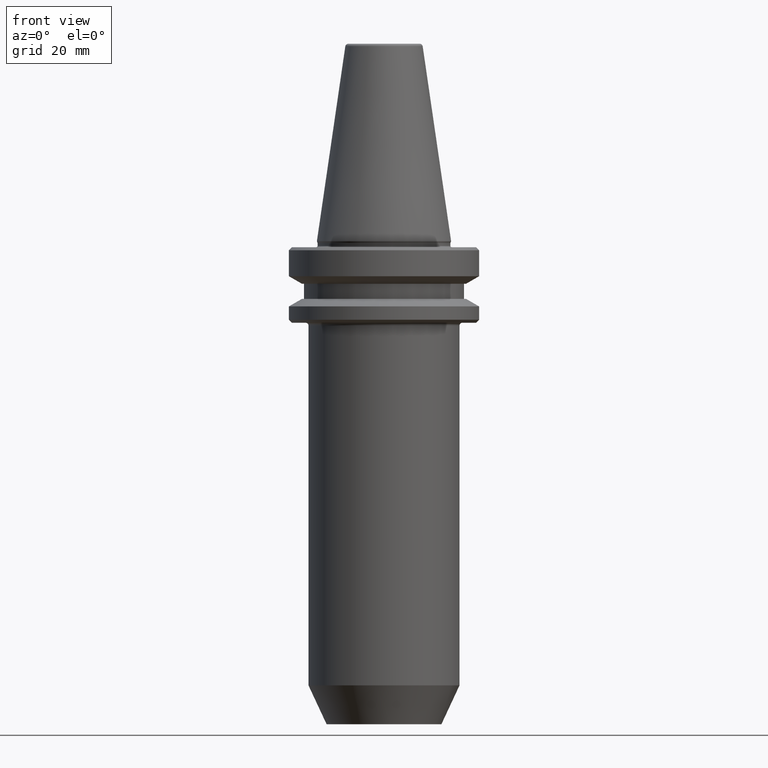
[diagram: clean part render]
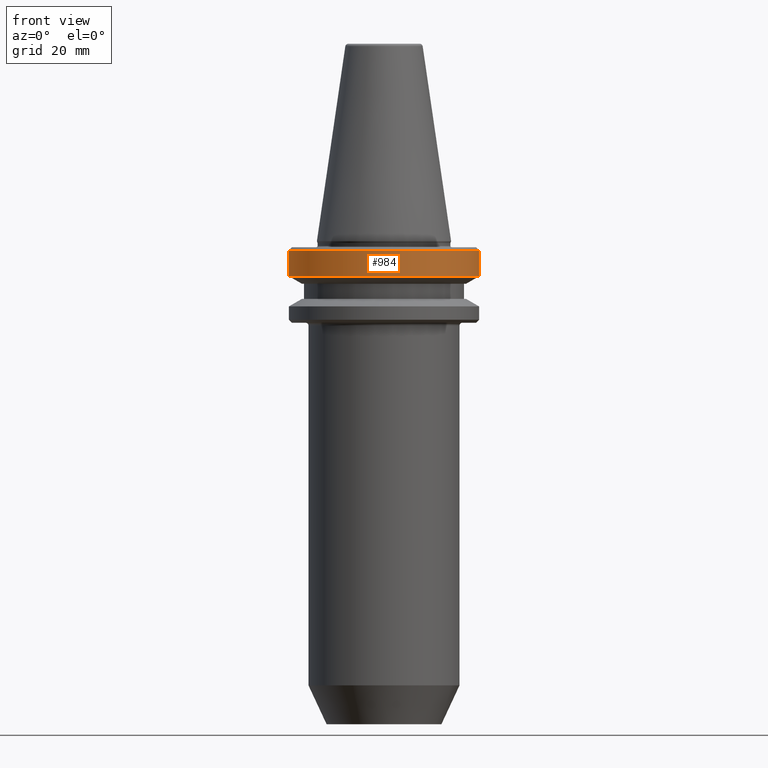
[diagram: same view with one face highlighted and labeled with its STEP entity id]
A machine part, front view. The second image highlights one B-rep face of the part: STEP entity #984.
In plain terms, the highlighted cylindrical surface (partial cylindrical patch) has radius 31.5 mm, axis along (-0, -0, 1).
Its self-contained STEP definition (entity closure, byte-faithful):
#50 = ORIENTED_EDGE ( 'NONE', *, *, #490, .F. ) ;
#53 = CARTESIAN_POINT ( 'NONE',  ( 31.49999999999986100, 0.0000000000000000000, 82.74845858742440900 ) ) ;
#60 = LINE ( 'NONE', #404, #118 ) ;
#81 = CARTESIAN_POINT ( 'NONE',  ( 0.0000000000000000000, 0.0000000000000000000, -2.311286788340083400 ) ) ;
#113 = AXIS2_PLACEMENT_3D ( 'NONE', #220, #1045, #558 ) ;
#118 = VECTOR ( 'NONE', #618, 1000.000000000000000 ) ;
#152 = CIRCLE ( 'NONE', #182, 31.49999999999986100 ) ;
#154 = VERTEX_POINT ( 'NONE', #567 ) ;
#182 = AXIS2_PLACEMENT_3D ( 'NONE', #81, #670, #235 ) ;
#184 = EDGE_LOOP ( 'NONE', ( #50, #705, #734, #564 ) ) ;
#207 = VECTOR ( 'NONE', #246, 1000.000000000000000 ) ;
#220 = CARTESIAN_POINT ( 'NONE',  ( 0.0000000000000000000, 0.0000000000000000000, -10.91114478202370800 ) ) ;
#235 = DIRECTION ( 'NONE',  ( 1.000000000000000000, 0.0000000000000000000, 0.0000000000000000000 ) ) ;
#246 = DIRECTION ( 'NONE',  ( -0.0000000000000000000, -0.0000000000000000000, 1.000000000000000000 ) ) ;
#334 = VERTEX_POINT ( 'NONE', #766 ) ;
#384 = LINE ( 'NONE', #53, #207 ) ;
#404 = CARTESIAN_POINT ( 'NONE',  ( -31.49999999999986100, 3.857637417314145300E-015, 82.74845858742440900 ) ) ;
#431 = DIRECTION ( 'NONE',  ( 1.000000000000000000, 0.0000000000000000000, 0.0000000000000000000 ) ) ;
#466 = CARTESIAN_POINT ( 'NONE',  ( -31.49999999999986100, 3.857637417314145300E-015, -10.91114478202370800 ) ) ;
#490 = EDGE_CURVE ( 'NONE', #777, #965, #60, .T. ) ;
#509 = CARTESIAN_POINT ( 'NONE',  ( -31.49999999999986100, 3.857637417314145300E-015, -2.311286788340083400 ) ) ;
#550 = EDGE_CURVE ( 'NONE', #965, #154, #152, .T. ) ;
#558 = DIRECTION ( 'NONE',  ( 1.000000000000000000, 0.0000000000000000000, 0.0000000000000000000 ) ) ;
#564 = ORIENTED_EDGE ( 'NONE', *, *, #550, .F. ) ;
#567 = CARTESIAN_POINT ( 'NONE',  ( 31.49999999999986100, 0.0000000000000000000, -2.311286788340083400 ) ) ;
#618 = DIRECTION ( 'NONE',  ( -0.0000000000000000000, -0.0000000000000000000, 1.000000000000000000 ) ) ;
#644 = EDGE_CURVE ( 'NONE', #777, #334, #725, .T. ) ;
#670 = DIRECTION ( 'NONE',  ( -0.0000000000000000000, -0.0000000000000000000, 1.000000000000000000 ) ) ;
#705 = ORIENTED_EDGE ( 'NONE', *, *, #644, .T. ) ;
#725 = CIRCLE ( 'NONE', #113, 31.49999999999986100 ) ;
#734 = ORIENTED_EDGE ( 'NONE', *, *, #810, .T. ) ;
#766 = CARTESIAN_POINT ( 'NONE',  ( 31.49999999999986100, 0.0000000000000000000, -10.91114478202370800 ) ) ;
#777 = VERTEX_POINT ( 'NONE', #466 ) ;
#810 = EDGE_CURVE ( 'NONE', #334, #154, #384, .T. ) ;
#811 = DIRECTION ( 'NONE',  ( -0.0000000000000000000, -0.0000000000000000000, 1.000000000000000000 ) ) ;
#879 = AXIS2_PLACEMENT_3D ( 'NONE', #943, #811, #431 ) ;
#943 = CARTESIAN_POINT ( 'NONE',  ( 0.0000000000000000000, 0.0000000000000000000, 82.74845858742440900 ) ) ;
#965 = VERTEX_POINT ( 'NONE', #509 ) ;
#979 = CYLINDRICAL_SURFACE ( 'NONE', #879, 31.49999999999986100 ) ;
#984 = ADVANCED_FACE ( 'NONE', ( #991 ), #979, .T. ) ;
#991 = FACE_OUTER_BOUND ( 'NONE', #184, .T. ) ;
#1045 = DIRECTION ( 'NONE',  ( -0.0000000000000000000, -0.0000000000000000000, 1.000000000000000000 ) ) ;